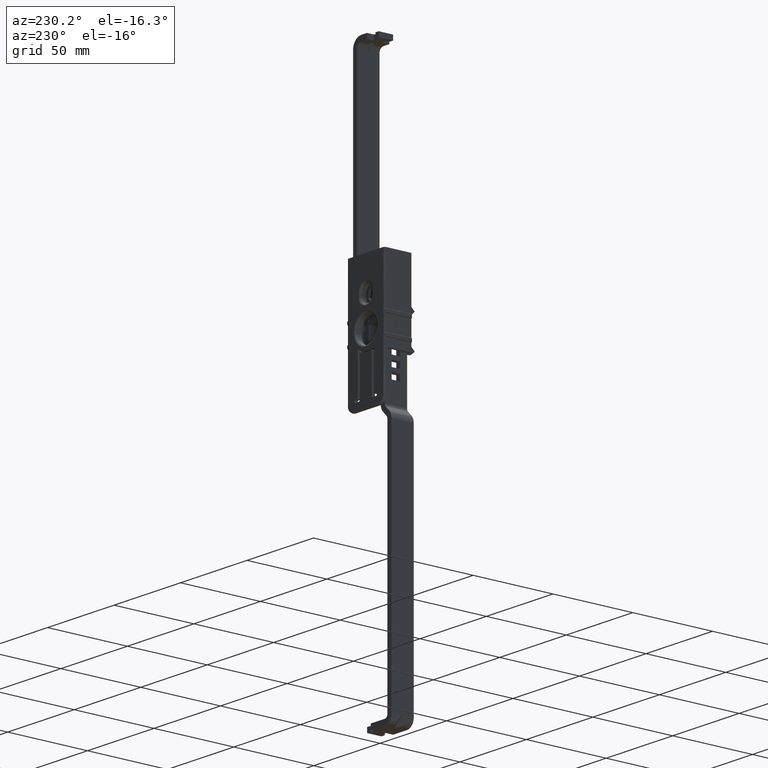
[diagram: clean part render]
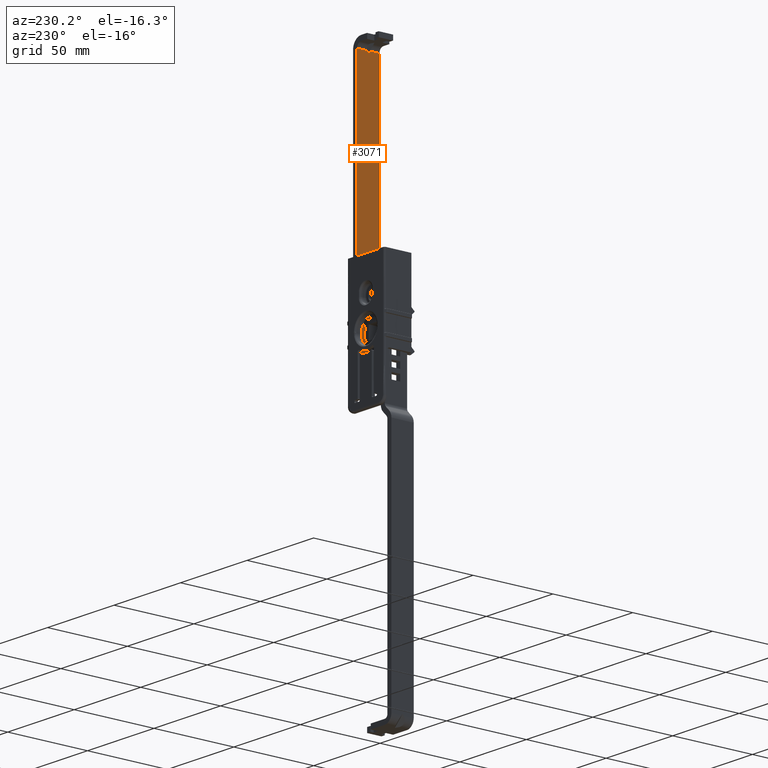
[diagram: same view with one face highlighted and labeled with its STEP entity id]
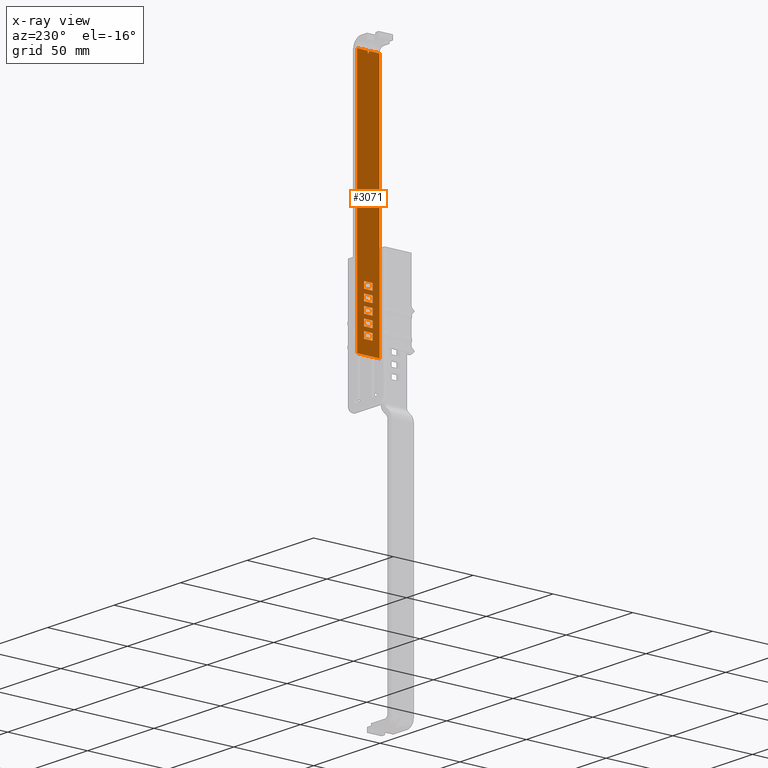
[diagram: x-ray of the same camera — body ghosted, the highlighted face saturated]
A machine part, auxiliary view. The second image highlights one B-rep face of the part: STEP entity #3071.
The next image is the same camera in x-ray: the body ghosted, the highlighted face saturated — about 0% of this face is hidden behind the body in this view.
In plain terms, the highlighted face is a freeform B-spline surface patch.
Its self-contained STEP definition (entity closure, byte-faithful):
#1908=CARTESIAN_POINT('',(8.900000041257520,0.655841901889165,143.000004253005190));
#1909=VERTEX_POINT('',#1908);
#1923=CARTESIAN_POINT('',(8.900000041257520,0.007315499113744,141.411445481483010));
#1924=VERTEX_POINT('',#1923);
#1925=CARTESIAN_POINT('',(8.900000041257520,0.655841901889165,143.000004253005190));
#1926=CARTESIAN_POINT('',(8.900000041257520,0.007315499113744,141.411445481483010));
#1927=QUASI_UNIFORM_CURVE('',1,(#1925,#1926),.UNSPECIFIED.,.F.,.U.);
#1928=EDGE_CURVE('',#1909,#1924,#1927,.T.);
#1943=CARTESIAN_POINT('',(8.900000041257520,-0.007315499113797,141.411445481483010));
#1944=VERTEX_POINT('',#1943);
#1952=CARTESIAN_POINT('',(8.900000041257520,-0.655841901889165,143.000004253005190));
#1953=VERTEX_POINT('',#1952);
#1954=CARTESIAN_POINT('',(8.900000041257520,-0.655841901889165,143.000004253005190));
#1955=CARTESIAN_POINT('',(8.900000041257520,-0.007315499113797,141.411445481483010));
#1956=QUASI_UNIFORM_CURVE('',1,(#1954,#1955),.UNSPECIFIED.,.F.,.U.);
#1957=EDGE_CURVE('',#1953,#1944,#1956,.T.);
#2010=CARTESIAN_POINT('',(8.900000041257520,0.007315499113744,141.411445481483010));
#2011=CARTESIAN_POINT('',(8.900000041257520,3.756066E-013,141.417418561497840));
#2012=CARTESIAN_POINT('',(8.900000041257520,-0.007315499113797,141.411445481483500));
#2020=(BOUNDED_CURVE()B_SPLINE_CURVE(2,(#2010,#2011,#2012),.UNSPECIFIED.,.F.,.U.)CURVE()GEOMETRIC_REPRESENTATION_ITEM()QUASI_UNIFORM_CURVE()RATIONAL_B_SPLINE_CURVE((1.0,0.866025403778754,1.0))REPRESENTATION_ITEM(''));
#2021=EDGE_CURVE('',#1924,#1944,#2020,.T.);
#2272=CARTESIAN_POINT('',(8.900000041257581,2.700000000000000,23.220002576783401));
#2273=VERTEX_POINT('',#2272);
#2274=CARTESIAN_POINT('',(8.900000041257499,-2.699999999999925,23.220002576783401));
#2275=VERTEX_POINT('',#2274);
#2276=CARTESIAN_POINT('',(8.900000041257581,2.700000000000000,23.220002576783401));
#2277=CARTESIAN_POINT('',(8.900000041257499,-2.699999999999925,23.220002576783401));
#2278=QUASI_UNIFORM_CURVE('',1,(#2276,#2277),.UNSPECIFIED.,.F.,.U.);
#2279=EDGE_CURVE('',#2273,#2275,#2278,.T.);
#2308=CARTESIAN_POINT('',(8.900000041257581,2.700000000000000,27.020002576783401));
#2309=VERTEX_POINT('',#2308);
#2310=CARTESIAN_POINT('',(8.900000041257581,2.700000000000000,27.020002576783401));
#2311=CARTESIAN_POINT('',(8.900000041257581,2.700000000000000,23.220002576783401));
#2312=QUASI_UNIFORM_CURVE('',1,(#2310,#2311),.UNSPECIFIED.,.F.,.U.);
#2313=EDGE_CURVE('',#2309,#2273,#2312,.T.);
#2336=CARTESIAN_POINT('',(8.900000041257581,-2.700000000000000,27.020002576783401));
#2337=VERTEX_POINT('',#2336);
#2338=CARTESIAN_POINT('',(8.900000041257581,-2.700000000000000,27.020002576783401));
#2339=CARTESIAN_POINT('',(8.900000041257581,2.700000000000000,27.020002576783401));
#2340=QUASI_UNIFORM_CURVE('',1,(#2338,#2339),.UNSPECIFIED.,.F.,.U.);
#2341=EDGE_CURVE('',#2337,#2309,#2340,.T.);
#2364=CARTESIAN_POINT('',(8.900000041257499,-2.699999999999925,23.220002576783401));
#2365=CARTESIAN_POINT('',(8.900000041257581,-2.700000000000000,27.020002576783401));
#2366=QUASI_UNIFORM_CURVE('',1,(#2364,#2365),.UNSPECIFIED.,.F.,.U.);
#2367=EDGE_CURVE('',#2275,#2337,#2366,.T.);
#2384=CARTESIAN_POINT('',(8.900000041257570,2.700000000000000,1.900002576783400));
#2385=VERTEX_POINT('',#2384);
#2386=CARTESIAN_POINT('',(8.900000041257499,2.700000000000035,-1.899997423216600));
#2387=VERTEX_POINT('',#2386);
#2388=CARTESIAN_POINT('',(8.900000041257570,2.700000000000000,1.900002576783400));
#2389=CARTESIAN_POINT('',(8.900000041257499,2.700000000000035,-1.899997423216600));
#2390=QUASI_UNIFORM_CURVE('',1,(#2388,#2389),.UNSPECIFIED.,.F.,.U.);
#2391=EDGE_CURVE('',#2385,#2387,#2390,.T.);
#2420=CARTESIAN_POINT('',(8.900000041257570,-2.700000000000000,1.900002576783400));
#2421=VERTEX_POINT('',#2420);
#2422=CARTESIAN_POINT('',(8.900000041257570,-2.700000000000000,1.900002576783400));
#2423=CARTESIAN_POINT('',(8.900000041257570,2.700000000000000,1.900002576783400));
#2424=QUASI_UNIFORM_CURVE('',1,(#2422,#2423),.UNSPECIFIED.,.F.,.U.);
#2425=EDGE_CURVE('',#2421,#2385,#2424,.T.);
#2448=CARTESIAN_POINT('',(8.900000041257570,-2.700000000000000,-1.899997423216600));
#2449=VERTEX_POINT('',#2448);
#2450=CARTESIAN_POINT('',(8.900000041257570,-2.700000000000000,-1.899997423216600));
#2451=CARTESIAN_POINT('',(8.900000041257570,-2.700000000000000,1.900002576783400));
#2452=QUASI_UNIFORM_CURVE('',1,(#2450,#2451),.UNSPECIFIED.,.F.,.U.);
#2453=EDGE_CURVE('',#2449,#2421,#2452,.T.);
#2476=CARTESIAN_POINT('',(8.900000041257499,2.700000000000035,-1.899997423216600));
#2477=CARTESIAN_POINT('',(8.900000041257570,-2.700000000000000,-1.899997423216600));
#2478=QUASI_UNIFORM_CURVE('',1,(#2476,#2477),.UNSPECIFIED.,.F.,.U.);
#2479=EDGE_CURVE('',#2387,#2449,#2478,.T.);
#2496=CARTESIAN_POINT('',(8.900000041257499,-2.699999999999925,4.380002576783401));
#2497=VERTEX_POINT('',#2496);
#2498=CARTESIAN_POINT('',(8.900000041257570,2.700000000000000,4.380002576783401));
#2499=VERTEX_POINT('',#2498);
#2500=CARTESIAN_POINT('',(8.900000041257499,-2.699999999999925,4.380002576783401));
#2501=CARTESIAN_POINT('',(8.900000041257570,2.700000000000000,4.380002576783401));
#2502=QUASI_UNIFORM_CURVE('',1,(#2500,#2501),.UNSPECIFIED.,.F.,.U.);
#2503=EDGE_CURVE('',#2497,#2499,#2502,.T.);
#2532=CARTESIAN_POINT('',(8.900000041257570,-2.700000000000000,8.180002576783402));
#2533=VERTEX_POINT('',#2532);
#2534=CARTESIAN_POINT('',(8.900000041257570,-2.700000000000000,8.180002576783402));
#2535=CARTESIAN_POINT('',(8.900000041257499,-2.699999999999925,4.380002576783401));
#2536=QUASI_UNIFORM_CURVE('',1,(#2534,#2535),.UNSPECIFIED.,.F.,.U.);
#2537=EDGE_CURVE('',#2533,#2497,#2536,.T.);
#2560=CARTESIAN_POINT('',(8.900000041257570,2.700000000000000,8.180002576783402));
#2561=VERTEX_POINT('',#2560);
#2562=CARTESIAN_POINT('',(8.900000041257570,2.700000000000000,8.180002576783402));
#2563=CARTESIAN_POINT('',(8.900000041257570,-2.700000000000000,8.180002576783402));
#2564=QUASI_UNIFORM_CURVE('',1,(#2562,#2563),.UNSPECIFIED.,.F.,.U.);
#2565=EDGE_CURVE('',#2561,#2533,#2564,.T.);
#2588=CARTESIAN_POINT('',(8.900000041257570,2.700000000000000,4.380002576783401));
#2589=CARTESIAN_POINT('',(8.900000041257570,2.700000000000000,8.180002576783402));
#2590=QUASI_UNIFORM_CURVE('',1,(#2588,#2589),.UNSPECIFIED.,.F.,.U.);
#2591=EDGE_CURVE('',#2499,#2561,#2590,.T.);
#2608=CARTESIAN_POINT('',(8.900000041257499,-2.699999999999925,10.660002576783400));
#2609=VERTEX_POINT('',#2608);
#2610=CARTESIAN_POINT('',(8.900000041257570,2.700000000000000,10.660002576783400));
#2611=VERTEX_POINT('',#2610);
#2612=CARTESIAN_POINT('',(8.900000041257499,-2.699999999999925,10.660002576783400));
#2613=CARTESIAN_POINT('',(8.900000041257570,2.700000000000000,10.660002576783400));
#2614=QUASI_UNIFORM_CURVE('',1,(#2612,#2613),.UNSPECIFIED.,.F.,.U.);
#2615=EDGE_CURVE('',#2609,#2611,#2614,.T.);
#2644=CARTESIAN_POINT('',(8.900000041257570,-2.700000000000000,14.460002576783401));
#2645=VERTEX_POINT('',#2644);
#2646=CARTESIAN_POINT('',(8.900000041257570,-2.700000000000000,14.460002576783401));
#2647=CARTESIAN_POINT('',(8.900000041257499,-2.699999999999925,10.660002576783400));
#2648=QUASI_UNIFORM_CURVE('',1,(#2646,#2647),.UNSPECIFIED.,.F.,.U.);
#2649=EDGE_CURVE('',#2645,#2609,#2648,.T.);
#2672=CARTESIAN_POINT('',(8.900000041257570,2.700000000000000,14.460002576783401));
#2673=VERTEX_POINT('',#2672);
#2674=CARTESIAN_POINT('',(8.900000041257570,2.700000000000000,14.460002576783401));
#2675=CARTESIAN_POINT('',(8.900000041257570,-2.700000000000000,14.460002576783401));
#2676=QUASI_UNIFORM_CURVE('',1,(#2674,#2675),.UNSPECIFIED.,.F.,.U.);
#2677=EDGE_CURVE('',#2673,#2645,#2676,.T.);
#2700=CARTESIAN_POINT('',(8.900000041257570,2.700000000000000,10.660002576783400));
#2701=CARTESIAN_POINT('',(8.900000041257570,2.700000000000000,14.460002576783401));
#2702=QUASI_UNIFORM_CURVE('',1,(#2700,#2701),.UNSPECIFIED.,.F.,.U.);
#2703=EDGE_CURVE('',#2611,#2673,#2702,.T.);
#2720=CARTESIAN_POINT('',(8.900000041257499,-2.699999999999925,16.940002576783399));
#2721=VERTEX_POINT('',#2720);
#2722=CARTESIAN_POINT('',(8.900000041257570,2.700000000000000,16.940002576783399));
#2723=VERTEX_POINT('',#2722);
#2724=CARTESIAN_POINT('',(8.900000041257499,-2.699999999999925,16.940002576783399));
#2725=CARTESIAN_POINT('',(8.900000041257570,2.700000000000000,16.940002576783399));
#2726=QUASI_UNIFORM_CURVE('',1,(#2724,#2725),.UNSPECIFIED.,.F.,.U.);
#2727=EDGE_CURVE('',#2721,#2723,#2726,.T.);
#2756=CARTESIAN_POINT('',(8.900000041257570,-2.700000000000000,20.740002576783400));
#2757=VERTEX_POINT('',#2756);
#2758=CARTESIAN_POINT('',(8.900000041257570,-2.700000000000000,20.740002576783400));
#2759=CARTESIAN_POINT('',(8.900000041257499,-2.699999999999925,16.940002576783399));
#2760=QUASI_UNIFORM_CURVE('',1,(#2758,#2759),.UNSPECIFIED.,.F.,.U.);
#2761=EDGE_CURVE('',#2757,#2721,#2760,.T.);
#2784=CARTESIAN_POINT('',(8.900000041257570,2.700000000000000,20.740002576783400));
#2785=VERTEX_POINT('',#2784);
#2786=CARTESIAN_POINT('',(8.900000041257570,2.700000000000000,20.740002576783400));
#2787=CARTESIAN_POINT('',(8.900000041257570,-2.700000000000000,20.740002576783400));
#2788=QUASI_UNIFORM_CURVE('',1,(#2786,#2787),.UNSPECIFIED.,.F.,.U.);
#2789=EDGE_CURVE('',#2785,#2757,#2788,.T.);
#2812=CARTESIAN_POINT('',(8.900000041257570,2.700000000000000,16.940002576783399));
#2813=CARTESIAN_POINT('',(8.900000041257570,2.700000000000000,20.740002576783400));
#2814=QUASI_UNIFORM_CURVE('',1,(#2812,#2813),.UNSPECIFIED.,.F.,.U.);
#2815=EDGE_CURVE('',#2723,#2785,#2814,.T.);
#2886=CARTESIAN_POINT('',(8.900000041257520,-7.000000332482160,143.000004253005190));
#2887=VERTEX_POINT('',#2886);
#2888=CARTESIAN_POINT('',(8.900000041257520,-0.655841901889165,143.000004253005190));
#2889=CARTESIAN_POINT('',(8.900000041257520,-7.000000332482160,143.000004253005190));
#2890=QUASI_UNIFORM_CURVE('',1,(#2888,#2889),.UNSPECIFIED.,.F.,.U.);
#2891=EDGE_CURVE('',#1953,#2887,#2890,.T.);
#2924=CARTESIAN_POINT('',(8.900000041257499,-7.000000332482160,-9.999997423216600));
#2925=VERTEX_POINT('',#2924);
#2931=CARTESIAN_POINT('',(8.900000041257499,7.000000332482160,-9.999997423216600));
#2932=VERTEX_POINT('',#2931);
#2933=CARTESIAN_POINT('',(8.900000041257499,7.000000332482160,-9.999997423216600));
#2934=CARTESIAN_POINT('',(8.900000041257499,-7.000000332482160,-9.999997423216600));
#2935=QUASI_UNIFORM_CURVE('',1,(#2933,#2934),.UNSPECIFIED.,.F.,.U.);
#2936=EDGE_CURVE('',#2932,#2925,#2935,.T.);
#3012=CARTESIAN_POINT('',(8.900000041257499,7.699300338562411,150.642354040188790));
#3013=CARTESIAN_POINT('',(8.900000041257499,7.699300338562411,-17.642351314180019));
#3014=CARTESIAN_POINT('',(8.900000041257499,-7.699300714071691,150.642354040188790));
#3015=CARTESIAN_POINT('',(8.900000041257499,-7.699300714071691,-17.642351314180019));
#3016=B_SPLINE_SURFACE_WITH_KNOTS('',1,1,((#3012,#3014),(#3013,#3015)),.UNSPECIFIED.,.F.,.F.,.U.,(2,2),(2,2),(0.0,168.284705354368810),(0.0,15.398601052634101),.UNSPECIFIED.);
#3017=ORIENTED_EDGE('',*,*,#1957,.T.);
#3018=ORIENTED_EDGE('',*,*,#2021,.F.);
#3019=ORIENTED_EDGE('',*,*,#1928,.F.);
#3020=CARTESIAN_POINT('',(8.900000041257520,7.000000332482160,143.000004253005190));
#3021=VERTEX_POINT('',#3020);
#3022=CARTESIAN_POINT('',(8.900000041257520,7.000000332482160,143.000004253005190));
#3023=CARTESIAN_POINT('',(8.900000041257520,0.655841901889165,143.000004253005190));
#3024=QUASI_UNIFORM_CURVE('',1,(#3022,#3023),.UNSPECIFIED.,.F.,.U.);
#3025=EDGE_CURVE('',#3021,#1909,#3024,.T.);
#3026=ORIENTED_EDGE('',*,*,#3025,.F.);
#3027=CARTESIAN_POINT('',(8.900000041257499,7.000000332482160,-9.999997423216600));
#3028=CARTESIAN_POINT('',(8.900000041257520,7.000000332482160,143.000004253005190));
#3029=QUASI_UNIFORM_CURVE('',1,(#3027,#3028),.UNSPECIFIED.,.F.,.U.);
#3030=EDGE_CURVE('',#2932,#3021,#3029,.T.);
#3031=ORIENTED_EDGE('',*,*,#3030,.F.);
#3032=ORIENTED_EDGE('',*,*,#2936,.T.);
#3033=CARTESIAN_POINT('',(8.900000041257499,-7.000000332482160,-9.999997423216600));
#3034=CARTESIAN_POINT('',(8.900000041257520,-7.000000332482160,143.000004253005190));
#3035=QUASI_UNIFORM_CURVE('',1,(#3033,#3034),.UNSPECIFIED.,.F.,.U.);
#3036=EDGE_CURVE('',#2925,#2887,#3035,.T.);
#3037=ORIENTED_EDGE('',*,*,#3036,.T.);
#3038=ORIENTED_EDGE('',*,*,#2891,.F.);
#3039=EDGE_LOOP('',(#3017,#3018,#3019,#3026,#3031,#3032,#3037,#3038));
#3040=FACE_OUTER_BOUND('',#3039,.T.);
#3041=ORIENTED_EDGE('',*,*,#2391,.F.);
#3042=ORIENTED_EDGE('',*,*,#2425,.F.);
#3043=ORIENTED_EDGE('',*,*,#2453,.F.);
#3044=ORIENTED_EDGE('',*,*,#2479,.F.);
#3045=EDGE_LOOP('',(#3041,#3042,#3043,#3044));
#3046=FACE_BOUND('',#3045,.T.);
#3047=ORIENTED_EDGE('',*,*,#2591,.T.);
#3048=ORIENTED_EDGE('',*,*,#2565,.T.);
#3049=ORIENTED_EDGE('',*,*,#2537,.T.);
#3050=ORIENTED_EDGE('',*,*,#2503,.T.);
#3051=EDGE_LOOP('',(#3047,#3048,#3049,#3050));
#3052=FACE_BOUND('',#3051,.T.);
#3053=ORIENTED_EDGE('',*,*,#2703,.T.);
#3054=ORIENTED_EDGE('',*,*,#2677,.T.);
#3055=ORIENTED_EDGE('',*,*,#2649,.T.);
#3056=ORIENTED_EDGE('',*,*,#2615,.T.);
#3057=EDGE_LOOP('',(#3053,#3054,#3055,#3056));
#3058=FACE_BOUND('',#3057,.T.);
#3059=ORIENTED_EDGE('',*,*,#2815,.T.);
#3060=ORIENTED_EDGE('',*,*,#2789,.T.);
#3061=ORIENTED_EDGE('',*,*,#2761,.T.);
#3062=ORIENTED_EDGE('',*,*,#2727,.T.);
#3063=EDGE_LOOP('',(#3059,#3060,#3061,#3062));
#3064=FACE_BOUND('',#3063,.T.);
#3065=ORIENTED_EDGE('',*,*,#2279,.F.);
#3066=ORIENTED_EDGE('',*,*,#2313,.F.);
#3067=ORIENTED_EDGE('',*,*,#2341,.F.);
#3068=ORIENTED_EDGE('',*,*,#2367,.F.);
#3069=EDGE_LOOP('',(#3065,#3066,#3067,#3068));
#3070=FACE_BOUND('',#3069,.T.);
#3071=ADVANCED_FACE('',(#3040,#3046,#3052,#3058,#3064,#3070),#3016,.T.);